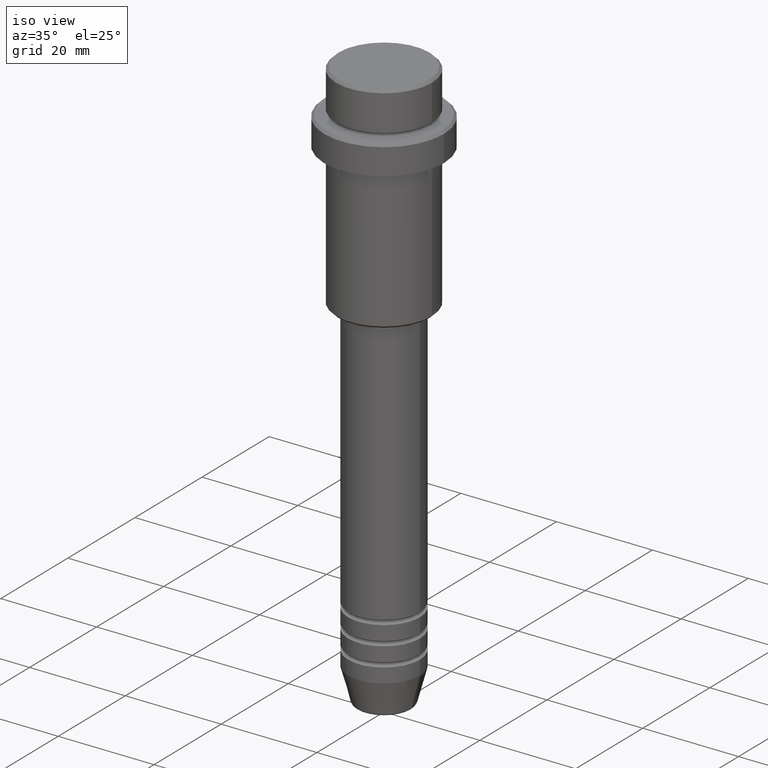
[diagram: clean part render]
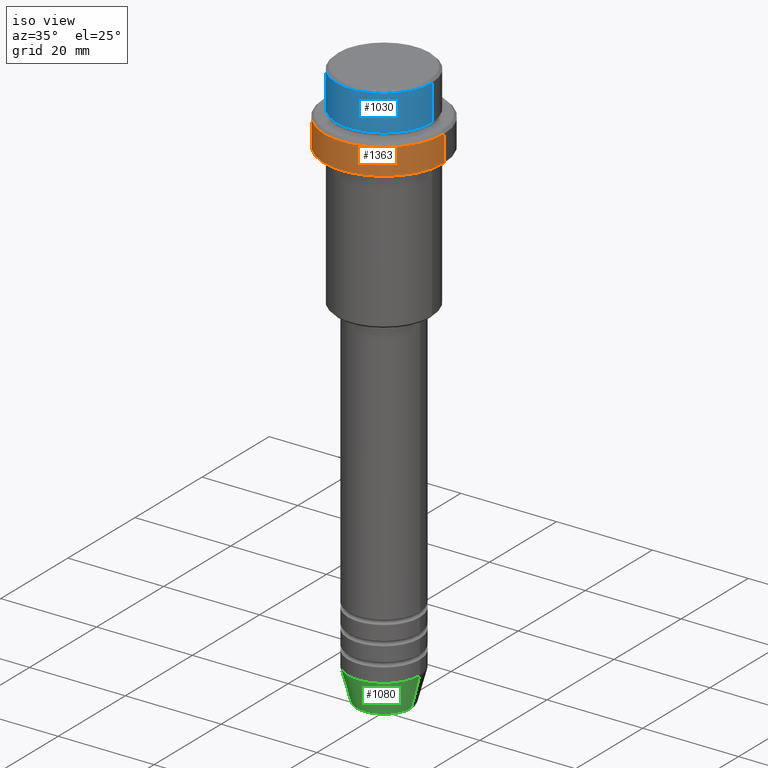
[diagram: same view with three faces highlighted in distinct colors, each labeled with its STEP entity id]
A machine part, iso view with three faces highlighted in distinct colors.
Their STEP definitions:

[orange] entity #1363 — the highlighted cylindrical surface (partial cylindrical patch) has radius 12.5 mm, axis along (-0, -0, 1).
#1 = VERTEX_POINT ( 'NONE', #82 ) ;
#69 = ORIENTED_EDGE ( 'NONE', *, *, #777, .T. ) ;
#82 = CARTESIAN_POINT ( 'NONE',  ( 12.50000000000000000, 0.000000000000000000, -15.00000000000000000 ) ) ;
#118 = VECTOR ( 'NONE', #471, 1000.000000000000000 ) ;
#163 = DIRECTION ( 'NONE',  ( -0.000000000000000000, -0.000000000000000000, 1.000000000000000000 ) ) ;
#181 = CARTESIAN_POINT ( 'NONE',  ( 0.000000000000000000, 0.000000000000000000, 0.000000000000000000 ) ) ;
#221 = EDGE_LOOP ( 'NONE', ( #606, #796, #855, #69 ) ) ;
#277 = LINE ( 'NONE', #925, #781 ) ;
#289 = CYLINDRICAL_SURFACE ( 'NONE', #361, 12.50000000000000000 ) ;
#330 = EDGE_CURVE ( 'NONE', #424, #464, #277, .T. ) ;
#340 = EDGE_CURVE ( 'NONE', #424, #1, #745, .T. ) ;
#361 = AXIS2_PLACEMENT_3D ( 'NONE', #181, #625, #512 ) ;
#388 = CARTESIAN_POINT ( 'NONE',  ( 12.50000000000000000, 0.000000000000000000, 0.000000000000000000 ) ) ;
#393 = EDGE_CURVE ( 'NONE', #1, #526, #1262, .T. ) ;
#401 = AXIS2_PLACEMENT_3D ( 'NONE', #715, #598, #1358 ) ;
#424 = VERTEX_POINT ( 'NONE', #918 ) ;
#464 = VERTEX_POINT ( 'NONE', #480 ) ;
#471 = DIRECTION ( 'NONE',  ( -0.000000000000000000, -0.000000000000000000, 1.000000000000000000 ) ) ;
#480 = CARTESIAN_POINT ( 'NONE',  ( -12.50000000000000000, 1.530808498934191521E-15, -9.500000000000031974 ) ) ;
#512 = DIRECTION ( 'NONE',  ( 1.000000000000000000, 0.000000000000000000, 0.000000000000000000 ) ) ;
#526 = VERTEX_POINT ( 'NONE', #1375 ) ;
#598 = DIRECTION ( 'NONE',  ( -0.000000000000000000, -0.000000000000000000, 1.000000000000000000 ) ) ;
#606 = ORIENTED_EDGE ( 'NONE', *, *, #330, .F. ) ;
#625 = DIRECTION ( 'NONE',  ( -0.000000000000000000, -0.000000000000000000, 1.000000000000000000 ) ) ;
#657 = AXIS2_PLACEMENT_3D ( 'NONE', #673, #1234, #1139 ) ;
#673 = CARTESIAN_POINT ( 'NONE',  ( 0.000000000000000000, 0.000000000000000000, -9.500000000000031974 ) ) ;
#715 = CARTESIAN_POINT ( 'NONE',  ( 0.000000000000000000, 0.000000000000000000, -15.00000000000000000 ) ) ;
#745 = CIRCLE ( 'NONE', #401, 12.50000000000000000 ) ;
#777 = EDGE_CURVE ( 'NONE', #526, #464, #1232, .T. ) ;
#781 = VECTOR ( 'NONE', #163, 1000.000000000000000 ) ;
#796 = ORIENTED_EDGE ( 'NONE', *, *, #340, .T. ) ;
#855 = ORIENTED_EDGE ( 'NONE', *, *, #393, .T. ) ;
#918 = CARTESIAN_POINT ( 'NONE',  ( -12.50000000000000000, 1.530808498934191521E-15, -15.00000000000000000 ) ) ;
#925 = CARTESIAN_POINT ( 'NONE',  ( -12.50000000000000000, 1.530808498934191521E-15, 0.000000000000000000 ) ) ;
#1139 = DIRECTION ( 'NONE',  ( 1.000000000000000000, 0.000000000000000000, 0.000000000000000000 ) ) ;
#1166 = FACE_OUTER_BOUND ( 'NONE', #221, .T. ) ;
#1232 = CIRCLE ( 'NONE', #657, 12.50000000000000000 ) ;
#1234 = DIRECTION ( 'NONE',  ( 0.000000000000000000, 0.000000000000000000, -1.000000000000000000 ) ) ;
#1262 = LINE ( 'NONE', #388, #118 ) ;
#1358 = DIRECTION ( 'NONE',  ( 1.000000000000000000, 0.000000000000000000, 0.000000000000000000 ) ) ;
#1363 = ADVANCED_FACE ( 'NONE', ( #1166 ), #289, .T. ) ;
#1375 = CARTESIAN_POINT ( 'NONE',  ( 12.50000000000000000, 0.000000000000000000, -9.500000000000031974 ) ) ;

[blue] entity #1030 — the highlighted cylindrical surface (partial cylindrical patch) has radius 10 mm, axis along (-0, -0, 1).
#12 = VERTEX_POINT ( 'NONE', #284 ) ;
#161 = LINE ( 'NONE', #1336, #860 ) ;
#167 = CARTESIAN_POINT ( 'NONE',  ( 9.999999999999998224, 0.000000000000000000, -0.4999999999999970024 ) ) ;
#229 = CYLINDRICAL_SURFACE ( 'NONE', #1140, 9.999999999999998224 ) ;
#257 = EDGE_LOOP ( 'NONE', ( #651, #1405, #600, #767 ) ) ;
#262 = CIRCLE ( 'NONE', #1167, 9.999999999999998224 ) ;
#284 = CARTESIAN_POINT ( 'NONE',  ( 9.999999999999998224, 0.000000000000000000, -7.999999999999998224 ) ) ;
#291 = DIRECTION ( 'NONE',  ( 1.000000000000000000, 0.000000000000000000, 0.000000000000000000 ) ) ;
#478 = CARTESIAN_POINT ( 'NONE',  ( -9.999999999999998224, 1.224646799147353059E-15, 0.000000000000000000 ) ) ;
#498 = VECTOR ( 'NONE', #1249, 1000.000000000000000 ) ;
#505 = VERTEX_POINT ( 'NONE', #937 ) ;
#514 = EDGE_CURVE ( 'NONE', #505, #12, #262, .T. ) ;
#557 = VERTEX_POINT ( 'NONE', #167 ) ;
#600 = ORIENTED_EDGE ( 'NONE', *, *, #865, .T. ) ;
#603 = DIRECTION ( 'NONE',  ( -0.000000000000000000, -0.000000000000000000, 1.000000000000000000 ) ) ;
#614 = CIRCLE ( 'NONE', #655, 9.999999999999998224 ) ;
#651 = ORIENTED_EDGE ( 'NONE', *, *, #821, .F. ) ;
#655 = AXIS2_PLACEMENT_3D ( 'NONE', #1202, #975, #1077 ) ;
#670 = CARTESIAN_POINT ( 'NONE',  ( 0.000000000000000000, 0.000000000000000000, 0.000000000000000000 ) ) ;
#695 = EDGE_CURVE ( 'NONE', #557, #1381, #614, .T. ) ;
#767 = ORIENTED_EDGE ( 'NONE', *, *, #695, .T. ) ;
#773 = FACE_OUTER_BOUND ( 'NONE', #257, .T. ) ;
#821 = EDGE_CURVE ( 'NONE', #505, #1381, #921, .T. ) ;
#853 = CARTESIAN_POINT ( 'NONE',  ( 0.000000000000000000, 0.000000000000000000, -7.999999999999998224 ) ) ;
#860 = VECTOR ( 'NONE', #603, 1000.000000000000000 ) ;
#865 = EDGE_CURVE ( 'NONE', #12, #557, #161, .T. ) ;
#921 = LINE ( 'NONE', #478, #498 ) ;
#937 = CARTESIAN_POINT ( 'NONE',  ( -9.999999999999998224, 1.224646799147353059E-15, -7.999999999999998224 ) ) ;
#975 = DIRECTION ( 'NONE',  ( 0.000000000000000000, 0.000000000000000000, -1.000000000000000000 ) ) ;
#991 = DIRECTION ( 'NONE',  ( 1.000000000000000000, 0.000000000000000000, 0.000000000000000000 ) ) ;
#1030 = ADVANCED_FACE ( 'NONE', ( #773 ), #229, .T. ) ;
#1050 = DIRECTION ( 'NONE',  ( -0.000000000000000000, -0.000000000000000000, 1.000000000000000000 ) ) ;
#1077 = DIRECTION ( 'NONE',  ( 1.000000000000000000, 0.000000000000000000, 0.000000000000000000 ) ) ;
#1082 = CARTESIAN_POINT ( 'NONE',  ( -9.999999999999998224, 1.224646799147353059E-15, -0.4999999999999970024 ) ) ;
#1111 = DIRECTION ( 'NONE',  ( -0.000000000000000000, -0.000000000000000000, 1.000000000000000000 ) ) ;
#1140 = AXIS2_PLACEMENT_3D ( 'NONE', #670, #1111, #991 ) ;
#1167 = AXIS2_PLACEMENT_3D ( 'NONE', #853, #1050, #291 ) ;
#1202 = CARTESIAN_POINT ( 'NONE',  ( 0.000000000000000000, 0.000000000000000000, -0.4999999999999970024 ) ) ;
#1249 = DIRECTION ( 'NONE',  ( -0.000000000000000000, -0.000000000000000000, 1.000000000000000000 ) ) ;
#1336 = CARTESIAN_POINT ( 'NONE',  ( 9.999999999999998224, 0.000000000000000000, 0.000000000000000000 ) ) ;
#1381 = VERTEX_POINT ( 'NONE', #1082 ) ;
#1405 = ORIENTED_EDGE ( 'NONE', *, *, #514, .T. ) ;

[green] entity #1080 — the highlighted conical surface has half-angle 15 deg.
#46 = DIRECTION ( 'NONE',  ( 1.000000000000000000, 0.000000000000000000, 0.000000000000000000 ) ) ;
#47 = DIRECTION ( 'NONE',  ( -0.000000000000000000, -0.000000000000000000, 1.000000000000000000 ) ) ;
#104 = CIRCLE ( 'NONE', #700, 5.723655072137191269 ) ;
#144 = LINE ( 'NONE', #731, #147 ) ;
#147 = VECTOR ( 'NONE', #943, 1000.000000000000000 ) ;
#222 = VERTEX_POINT ( 'NONE', #533 ) ;
#263 = VERTEX_POINT ( 'NONE', #778 ) ;
#271 = LINE ( 'NONE', #1347, #1108 ) ;
#272 = ORIENTED_EDGE ( 'NONE', *, *, #931, .T. ) ;
#364 = CARTESIAN_POINT ( 'NONE',  ( 0.000000000000000000, 0.000000000000000000, -112.9999999999999858 ) ) ;
#367 = EDGE_LOOP ( 'NONE', ( #538, #272, #1126, #642 ) ) ;
#391 = FACE_OUTER_BOUND ( 'NONE', #367, .T. ) ;
#400 = EDGE_CURVE ( 'NONE', #263, #591, #271, .T. ) ;
#469 = EDGE_CURVE ( 'NONE', #976, #222, #144, .T. ) ;
#476 = CARTESIAN_POINT ( 'NONE',  ( 5.723655072137191269, 0.000000000000000000, -119.6294095225512564 ) ) ;
#484 = DIRECTION ( 'NONE',  ( -0.000000000000000000, -0.000000000000000000, 1.000000000000000000 ) ) ;
#533 = CARTESIAN_POINT ( 'NONE',  ( 7.500000000000000000, 0.000000000000000000, -112.9999999999999858 ) ) ;
#538 = ORIENTED_EDGE ( 'NONE', *, *, #400, .F. ) ;
#591 = VERTEX_POINT ( 'NONE', #1060 ) ;
#642 = ORIENTED_EDGE ( 'NONE', *, *, #852, .F. ) ;
#700 = AXIS2_PLACEMENT_3D ( 'NONE', #915, #484, #798 ) ;
#707 = DIRECTION ( 'NONE',  ( 1.000000000000000000, 0.000000000000000000, 0.000000000000000000 ) ) ;
#731 = CARTESIAN_POINT ( 'NONE',  ( 7.500000000000000000, 0.000000000000000000, -112.9999999999999858 ) ) ;
#778 = CARTESIAN_POINT ( 'NONE',  ( -5.723655072137190380, 8.097153428560735915E-16, -119.6294095225512564 ) ) ;
#798 = DIRECTION ( 'NONE',  ( 1.000000000000000000, 0.000000000000000000, 0.000000000000000000 ) ) ;
#814 = AXIS2_PLACEMENT_3D ( 'NONE', #364, #1345, #46 ) ;
#852 = EDGE_CURVE ( 'NONE', #591, #222, #1343, .T. ) ;
#880 = CONICAL_SURFACE ( 'NONE', #1045, 7.500000000000000000, 0.2617993877991500740 ) ;
#915 = CARTESIAN_POINT ( 'NONE',  ( 0.000000000000000000, 0.000000000000000000, -119.6294095225512564 ) ) ;
#931 = EDGE_CURVE ( 'NONE', #263, #976, #104, .T. ) ;
#943 = DIRECTION ( 'NONE',  ( 0.2588190451025213501, 0.000000000000000000, 0.9659258262890680902 ) ) ;
#976 = VERTEX_POINT ( 'NONE', #476 ) ;
#1045 = AXIS2_PLACEMENT_3D ( 'NONE', #1368, #47, #707 ) ;
#1060 = CARTESIAN_POINT ( 'NONE',  ( -7.500000000000000000, 9.184850993605147944E-16, -112.9999999999999858 ) ) ;
#1080 = ADVANCED_FACE ( 'NONE', ( #391 ), #880, .T. ) ;
#1108 = VECTOR ( 'NONE', #1153, 1000.000000000000000 ) ;
#1126 = ORIENTED_EDGE ( 'NONE', *, *, #469, .T. ) ;
#1153 = DIRECTION ( 'NONE',  ( -0.2588190451025213501, 3.169619151431772337E-17, 0.9659258262890680902 ) ) ;
#1343 = CIRCLE ( 'NONE', #814, 7.500000000000000000 ) ;
#1345 = DIRECTION ( 'NONE',  ( -0.000000000000000000, -0.000000000000000000, 1.000000000000000000 ) ) ;
#1347 = CARTESIAN_POINT ( 'NONE',  ( -7.500000000000000000, 9.184850993605147944E-16, -112.9999999999999858 ) ) ;
#1368 = CARTESIAN_POINT ( 'NONE',  ( 0.000000000000000000, 0.000000000000000000, -112.9999999999999858 ) ) ;